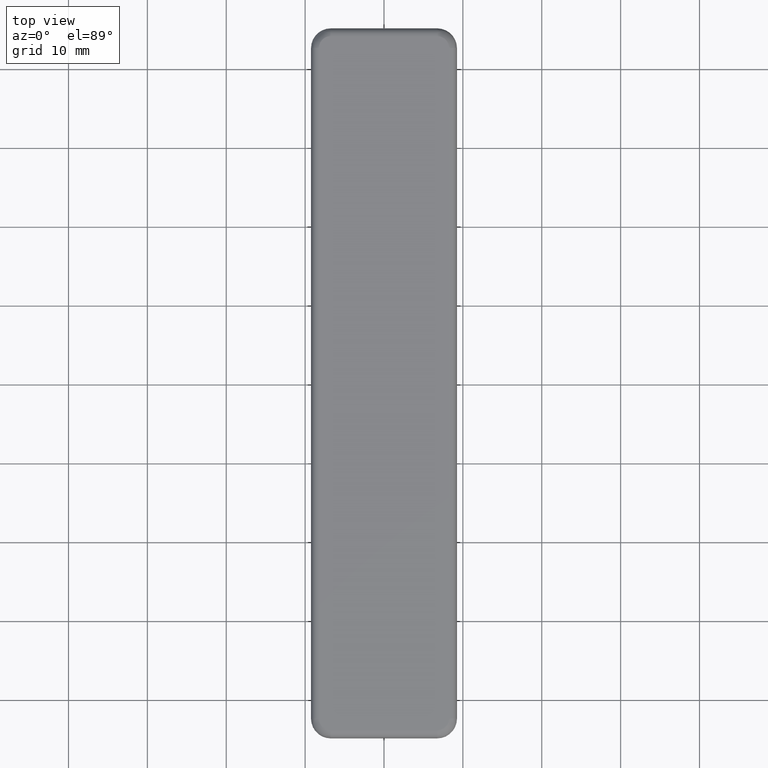
[diagram: clean part render]
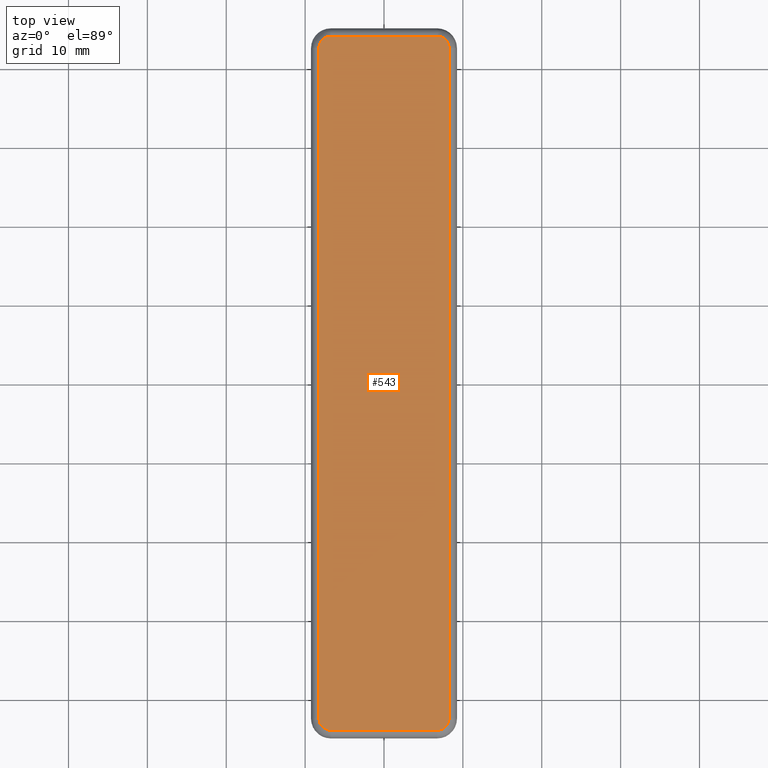
[diagram: same view with one face highlighted and labeled with its STEP entity id]
A machine part, top view. The second image highlights one B-rep face of the part: STEP entity #543.
In plain terms, the highlighted planar face has unit normal (0, 0, -1).
Its self-contained STEP definition (entity closure, byte-faithful):
#468=CARTESIAN_POINT('',(11.100049733935066,-53.999955233543915,2.500000000000001));
#469=DIRECTION('',(0.0,0.0,-1.0));
#470=DIRECTION('',(-1.0,0.0,0.0));
#471=AXIS2_PLACEMENT_3D('',#468,#469,#470);
#472=PLANE('',#471);
#473=CARTESIAN_POINT('',(6.750044999972943,-43.999954999820147,2.500000000000001));
#474=VERTEX_POINT('',#473);
#475=CARTESIAN_POINT('',(-6.749954999972943,-43.999954999820154,2.499999999999999));
#476=VERTEX_POINT('',#475);
#477=CARTESIAN_POINT('',(6.750044999972943,-43.999954999820147,2.500000000000001));
#478=DIRECTION('',(-1.0,0.0,0.0));
#479=VECTOR('',#478,13.499999999945885);
#480=LINE('',#477,#479);
#481=EDGE_CURVE('',#474,#476,#480,.T.);
#482=ORIENTED_EDGE('',*,*,#481,.F.);
#483=CARTESIAN_POINT('',(8.250044999962944,-42.499954999830152,2.500000000000001));
#484=VERTEX_POINT('',#483);
#485=CARTESIAN_POINT('',(6.750044999972943,-42.499954999830152,2.500000000000001));
#486=DIRECTION('',(1.224647E-016,0.0,-1.0));
#487=DIRECTION('',(-1.0,0.0,-1.224647E-016));
#488=AXIS2_PLACEMENT_3D('',#485,#486,#487);
#489=CIRCLE('',#488,1.499999999990000);
#490=EDGE_CURVE('',#484,#474,#489,.T.);
#491=ORIENTED_EDGE('',*,*,#490,.F.);
#492=CARTESIAN_POINT('',(8.250044999962938,42.499999999829924,2.500000000000001));
#493=VERTEX_POINT('',#492);
#494=CARTESIAN_POINT('',(8.250044999962938,42.499999999829924,2.500000000000001));
#495=DIRECTION('',(0.0,-1.0,0.0));
#496=VECTOR('',#495,84.999954999660076);
#497=LINE('',#494,#496);
#498=EDGE_CURVE('',#493,#484,#497,.T.);
#499=ORIENTED_EDGE('',*,*,#498,.F.);
#500=CARTESIAN_POINT('',(6.750044999972942,43.999999999819927,2.500000000000001));
#501=VERTEX_POINT('',#500);
#502=CARTESIAN_POINT('',(6.750044999972943,42.499999999829924,2.500000000000001));
#503=DIRECTION('',(1.224647E-016,0.0,-1.0));
#504=DIRECTION('',(-1.0,0.0,-1.224647E-016));
#505=AXIS2_PLACEMENT_3D('',#502,#503,#504);
#506=CIRCLE('',#505,1.499999999990000);
#507=EDGE_CURVE('',#501,#493,#506,.T.);
#508=ORIENTED_EDGE('',*,*,#507,.F.);
#509=CARTESIAN_POINT('',(-6.749954999972943,43.999999999819920,2.499999999999999));
#510=VERTEX_POINT('',#509);
#511=CARTESIAN_POINT('',(-6.749954999972943,43.999999999819920,2.499999999999999));
#512=DIRECTION('',(1.0,0.0,0.0));
#513=VECTOR('',#512,13.499999999945885);
#514=LINE('',#511,#513);
#515=EDGE_CURVE('',#510,#501,#514,.T.);
#516=ORIENTED_EDGE('',*,*,#515,.F.);
#517=CARTESIAN_POINT('',(-8.249954999962943,42.499999999829924,2.499999999999999));
#518=VERTEX_POINT('',#517);
#519=CARTESIAN_POINT('',(-6.749954999972943,42.499999999829924,2.499999999999999));
#520=DIRECTION('',(1.224647E-016,0.0,-1.0));
#521=DIRECTION('',(-1.0,0.0,-1.224647E-016));
#522=AXIS2_PLACEMENT_3D('',#519,#520,#521);
#523=CIRCLE('',#522,1.499999999990000);
#524=EDGE_CURVE('',#518,#510,#523,.T.);
#525=ORIENTED_EDGE('',*,*,#524,.F.);
#526=CARTESIAN_POINT('',(-8.249954999962943,-42.499954999830152,2.499999999999999));
#527=VERTEX_POINT('',#526);
#528=CARTESIAN_POINT('',(-8.249954999962938,-42.499954999830152,2.499999999999999));
#529=DIRECTION('',(0.0,1.0,0.0));
#530=VECTOR('',#529,84.999954999660076);
#531=LINE('',#528,#530);
#532=EDGE_CURVE('',#527,#518,#531,.T.);
#533=ORIENTED_EDGE('',*,*,#532,.F.);
#534=CARTESIAN_POINT('',(-6.749954999972943,-42.499954999830152,2.499999999999999));
#535=DIRECTION('',(1.224647E-016,0.0,-1.0));
#536=DIRECTION('',(-1.0,0.0,-1.224647E-016));
#537=AXIS2_PLACEMENT_3D('',#534,#535,#536);
#538=CIRCLE('',#537,1.499999999990000);
#539=EDGE_CURVE('',#476,#527,#538,.T.);
#540=ORIENTED_EDGE('',*,*,#539,.F.);
#541=EDGE_LOOP('',(#482,#491,#499,#508,#516,#525,#533,#540));
#542=FACE_OUTER_BOUND('',#541,.T.);
#543=ADVANCED_FACE('',(#542),#472,.F.);